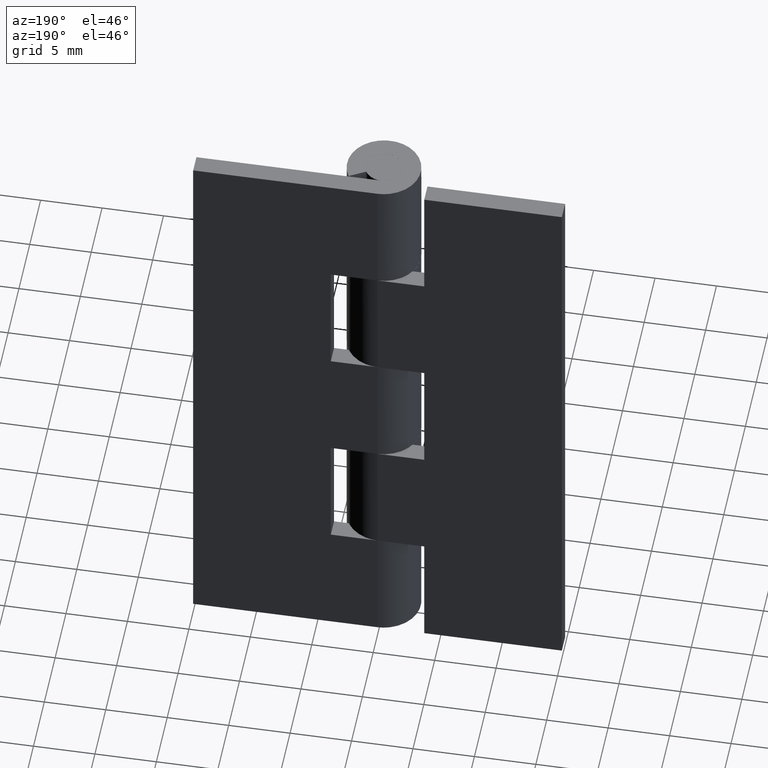
[diagram: clean part render]
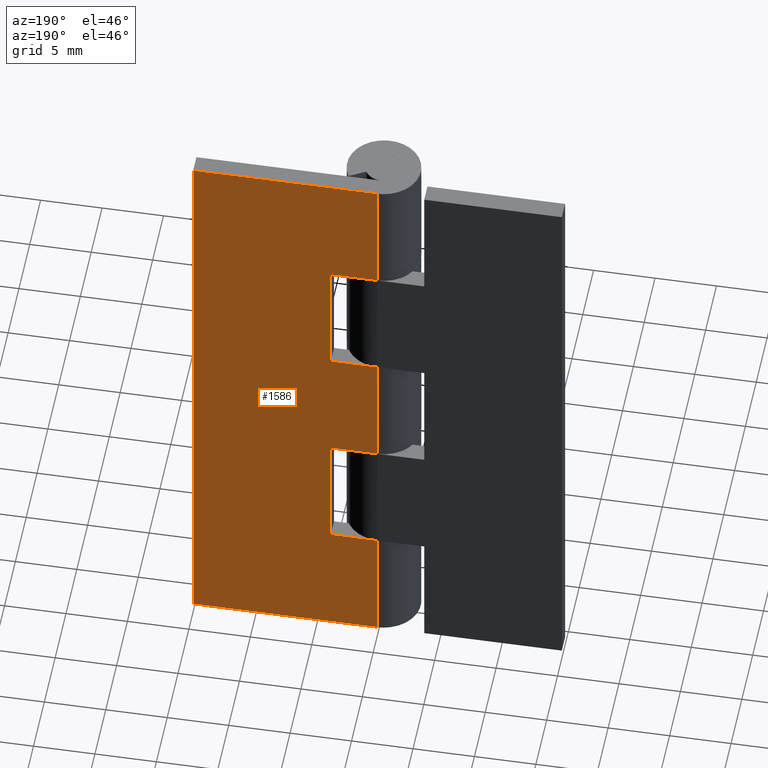
[diagram: same view with one face highlighted and labeled with its STEP entity id]
A machine part, auxiliary view. The second image highlights one B-rep face of the part: STEP entity #1586.
In plain terms, the highlighted face is a freeform B-spline surface patch.
Its self-contained STEP definition (entity closure, byte-faithful):
#796=CARTESIAN_POINT('',(0.0,3.0,20.0));
#797=VERTEX_POINT('',#796);
#817=CARTESIAN_POINT('',(3.800003000000000,3.0,20.0));
#818=VERTEX_POINT('',#817);
#819=CARTESIAN_POINT('',(0.0,3.0,20.0));
#820=CARTESIAN_POINT('',(3.800003000000000,3.0,20.0));
#821=QUASI_UNIFORM_CURVE('',1,(#819,#820),.UNSPECIFIED.,.F.,.U.);
#822=EDGE_CURVE('',#797,#818,#821,.T.);
#846=CARTESIAN_POINT('',(3.800003000000000,3.0,10.0));
#847=VERTEX_POINT('',#846);
#853=CARTESIAN_POINT('',(0.0,3.0,10.0));
#854=VERTEX_POINT('',#853);
#855=CARTESIAN_POINT('',(3.800003000000000,3.0,10.0));
#856=CARTESIAN_POINT('',(0.0,3.0,10.0));
#857=QUASI_UNIFORM_CURVE('',1,(#855,#856),.UNSPECIFIED.,.F.,.U.);
#858=EDGE_CURVE('',#847,#854,#857,.T.);
#923=CARTESIAN_POINT('',(3.800003000000000,3.0,20.0));
#924=CARTESIAN_POINT('',(3.800003000000000,3.0,10.0));
#925=QUASI_UNIFORM_CURVE('',1,(#923,#924),.UNSPECIFIED.,.F.,.U.);
#926=EDGE_CURVE('',#818,#847,#925,.T.);
#944=CARTESIAN_POINT('',(3.800003000000000,3.0,30.0));
#945=VERTEX_POINT('',#944);
#951=CARTESIAN_POINT('',(0.0,3.0,30.0));
#952=VERTEX_POINT('',#951);
#953=CARTESIAN_POINT('',(0.0,3.0,30.0));
#954=CARTESIAN_POINT('',(3.800003000000000,3.0,30.0));
#955=QUASI_UNIFORM_CURVE('',1,(#953,#954),.UNSPECIFIED.,.F.,.U.);
#956=EDGE_CURVE('',#952,#945,#955,.T.);
#1050=CARTESIAN_POINT('',(0.0,3.0,40.0));
#1051=VERTEX_POINT('',#1050);
#1071=CARTESIAN_POINT('',(3.800003000000000,3.0,40.0));
#1072=VERTEX_POINT('',#1071);
#1073=CARTESIAN_POINT('',(3.800003000000000,3.0,40.0));
#1074=CARTESIAN_POINT('',(0.0,3.0,40.0));
#1075=QUASI_UNIFORM_CURVE('',1,(#1073,#1074),.UNSPECIFIED.,.F.,.U.);
#1076=EDGE_CURVE('',#1072,#1051,#1075,.T.);
#1099=CARTESIAN_POINT('',(3.800003000000000,3.0,30.0));
#1100=CARTESIAN_POINT('',(3.800003000000000,3.0,40.0));
#1101=QUASI_UNIFORM_CURVE('',1,(#1099,#1100),.UNSPECIFIED.,.F.,.U.);
#1102=EDGE_CURVE('',#945,#1072,#1101,.T.);
#1118=CARTESIAN_POINT('',(-5.510729E-016,3.0,0.0));
#1119=VERTEX_POINT('',#1118);
#1120=CARTESIAN_POINT('',(15.0,3.0,0.0));
#1121=VERTEX_POINT('',#1120);
#1122=CARTESIAN_POINT('',(-5.510729E-016,3.0,0.0));
#1123=CARTESIAN_POINT('',(15.0,3.0,0.0));
#1124=QUASI_UNIFORM_CURVE('',1,(#1122,#1123),.UNSPECIFIED.,.F.,.U.);
#1125=EDGE_CURVE('',#1119,#1121,#1124,.T.);
#1196=CARTESIAN_POINT('',(-5.510729E-016,3.0,50.0));
#1197=VERTEX_POINT('',#1196);
#1198=CARTESIAN_POINT('',(15.0,3.0,50.0));
#1199=VERTEX_POINT('',#1198);
#1200=CARTESIAN_POINT('',(-5.510729E-016,3.0,50.0));
#1201=CARTESIAN_POINT('',(15.0,3.0,50.0));
#1202=QUASI_UNIFORM_CURVE('',1,(#1200,#1201),.UNSPECIFIED.,.F.,.U.);
#1203=EDGE_CURVE('',#1197,#1199,#1202,.T.);
#1275=CARTESIAN_POINT('',(15.0,3.0,50.0));
#1276=CARTESIAN_POINT('',(15.0,3.0,0.0));
#1277=QUASI_UNIFORM_CURVE('',1,(#1275,#1276),.UNSPECIFIED.,.F.,.U.);
#1278=EDGE_CURVE('',#1199,#1121,#1277,.T.);
#1318=CARTESIAN_POINT('',(-5.510729E-016,3.0,50.0));
#1319=CARTESIAN_POINT('',(0.0,3.0,40.0));
#1320=QUASI_UNIFORM_CURVE('',1,(#1318,#1319),.UNSPECIFIED.,.F.,.U.);
#1321=EDGE_CURVE('',#1197,#1051,#1320,.T.);
#1404=CARTESIAN_POINT('',(0.0,3.0,30.0));
#1405=CARTESIAN_POINT('',(0.0,3.0,20.0));
#1406=QUASI_UNIFORM_CURVE('',1,(#1404,#1405),.UNSPECIFIED.,.F.,.U.);
#1407=EDGE_CURVE('',#952,#797,#1406,.T.);
#1435=CARTESIAN_POINT('',(0.0,3.0,10.0));
#1436=CARTESIAN_POINT('',(-5.510729E-016,3.0,0.0));
#1437=QUASI_UNIFORM_CURVE('',1,(#1435,#1436),.UNSPECIFIED.,.F.,.U.);
#1438=EDGE_CURVE('',#854,#1119,#1437,.T.);
#1567=CARTESIAN_POINT('',(-0.749249970927090,3.0,-2.497499903090299));
#1568=CARTESIAN_POINT('',(-0.749249970927090,3.0,52.497501244194808));
#1569=CARTESIAN_POINT('',(15.749250373258439,3.0,-2.497499903090299));
#1570=CARTESIAN_POINT('',(15.749250373258439,3.0,52.497501244194808));
#1571=B_SPLINE_SURFACE_WITH_KNOTS('',1,1,((#1567,#1569),(#1568,#1570)),.UNSPECIFIED.,.F.,.F.,.U.,(2,2),(2,2),(0.0,54.995001147285109),(0.0,16.498500344185530),.UNSPECIFIED.);
#1572=ORIENTED_EDGE('',*,*,#1438,.F.);
#1573=ORIENTED_EDGE('',*,*,#858,.F.);
#1574=ORIENTED_EDGE('',*,*,#926,.F.);
#1575=ORIENTED_EDGE('',*,*,#822,.F.);
#1576=ORIENTED_EDGE('',*,*,#1407,.F.);
#1577=ORIENTED_EDGE('',*,*,#956,.T.);
#1578=ORIENTED_EDGE('',*,*,#1102,.T.);
#1579=ORIENTED_EDGE('',*,*,#1076,.T.);
#1580=ORIENTED_EDGE('',*,*,#1321,.F.);
#1581=ORIENTED_EDGE('',*,*,#1203,.T.);
#1582=ORIENTED_EDGE('',*,*,#1278,.T.);
#1583=ORIENTED_EDGE('',*,*,#1125,.F.);
#1584=EDGE_LOOP('',(#1572,#1573,#1574,#1575,#1576,#1577,#1578,#1579,#1580,#1581,#1582,#1583));
#1585=FACE_OUTER_BOUND('',#1584,.T.);
#1586=ADVANCED_FACE('',(#1585),#1571,.T.);